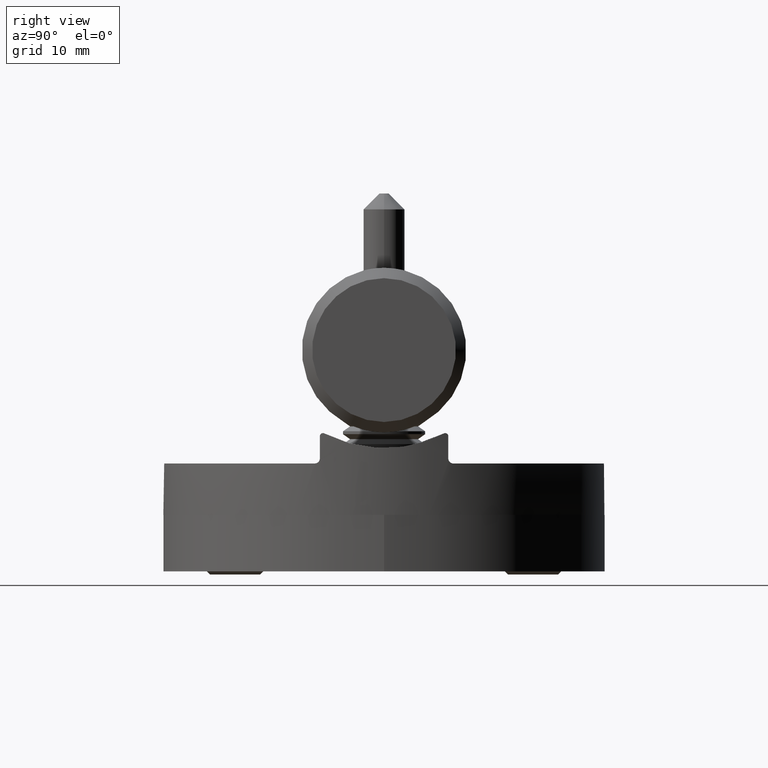
[diagram: clean part render]
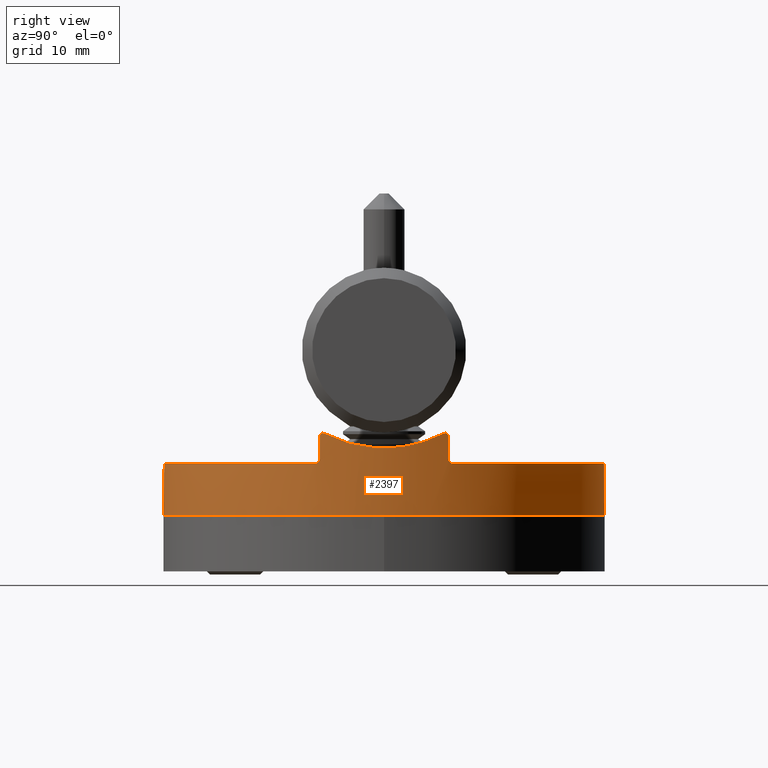
[diagram: same view with one face highlighted and labeled with its STEP entity id]
A machine part, right view. The second image highlights one B-rep face of the part: STEP entity #2397.
In plain terms, the highlighted cylindrical surface (bore or boss wall) has radius 21.5 mm, axis along (-0, -0, -1).
Its self-contained STEP definition (entity closure, byte-faithful):
#193 = DIRECTION ( 'NONE',  ( 0.000000000000000000, 0.000000000000000000, 1.000000000000000000 ) ) ;
#254 = CARTESIAN_POINT ( 'NONE',  ( -21.14691385272726976, 4.005726293120474679, 7.115869858192865216 ) ) ;
#334 = CARTESIAN_POINT ( 'NONE',  ( -21.49577461599383810, -0.4967685220217707420, 6.507262798137473325 ) ) ;
#398 = DIRECTION ( 'NONE',  ( 1.000000000000000000, 0.000000000000000000, 0.000000000000000000 ) ) ;
#401 = CARTESIAN_POINT ( 'NONE',  ( -20.45537897838723040, 6.621612830037686415, 5.000000000000000000 ) ) ;
#411 = CARTESIAN_POINT ( 'NONE',  ( -21.50012919026475444, -0.2424505981596691562, 6.499777792684921174 ) ) ;
#503 = B_SPLINE_CURVE_WITH_KNOTS ( 'NONE', 3,
 ( #5653, #21836, #19868, #9223, #21669, #5726, #14761, #9301, #12820, #11009, #7520, #2157, #14626, #7380, #9452, #11167, #519, #16393, #597, #21750 ),
 .UNSPECIFIED., .F., .F.,
 ( 4, 2, 2, 2, 2, 2, 2, 2, 2, 4 ),
 ( 0.0005128972247787906384, 0.003554065777519497486, 0.004314357915704673981, 0.005074650053889850909, 0.006595234330260204766, 0.007355526468445380828, 0.008115818606630556889, 0.009636402883000910746, 0.01115698715937126113, 0.01267757143574161326 ),
 .UNSPECIFIED. ) ;
#519 = CARTESIAN_POINT ( 'NONE',  ( 21.13508447921551792, 3.973493441872443910, 7.137712790741050917 ) ) ;
#573 = DIRECTION ( 'NONE',  ( -1.000000000000000000, 0.000000000000000000, 0.000000000000000000 ) ) ;
#597 = CARTESIAN_POINT ( 'NONE',  ( 20.82356144371399509, 5.370150797943423093, 7.701376671730360890 ) ) ;
#729 = CARTESIAN_POINT ( 'NONE',  ( 20.57152157717070651, 6.249999999999997335, 5.500000000000000000 ) ) ;
#989 = CARTESIAN_POINT ( 'NONE',  ( 20.57152157717070651, 6.249999999999996447, 7.773284809162592346 ) ) ;
#1386 = CARTESIAN_POINT ( 'NONE',  ( -20.57152157717070651, -6.249999999999999112, 8.174682452694518986 ) ) ;
#1582 = CARTESIAN_POINT ( 'NONE',  ( 20.57152157717070651, -6.249999999999999112, 7.666973043356861695 ) ) ;
#1612 = VECTOR ( 'NONE', #18955, 1000.000000000000000 ) ;
#1725 = ORIENTED_EDGE ( 'NONE', *, *, #6144, .F. ) ;
#1794 = ORIENTED_EDGE ( 'NONE', *, *, #15998, .F. ) ;
#1893 = CARTESIAN_POINT ( 'NONE',  ( -21.35754311692065244, -2.519511209843279698, 6.746244936448041685 ) ) ;
#2041 = CARTESIAN_POINT ( 'NONE',  ( -20.57152157717071006, 6.250000000000000888, 5.364602659282593500 ) ) ;
#2100 = DIRECTION ( 'NONE',  ( 1.000000000000000000, 0.000000000000000000, 0.000000000000000000 ) ) ;
#2153 = EDGE_CURVE ( 'NONE', #20287, #4998, #18182, .T. ) ;
#2157 = CARTESIAN_POINT ( 'NONE',  ( 21.47793092614874766, 1.006771293621065100, 6.537990799168366784 ) ) ;
#2177 = VECTOR ( 'NONE', #21291, 1000.000000000000000 ) ;
#2397 = ADVANCED_FACE ( 'NONE', ( #22474, #10188 ), #10753, .T. ) ;
#2507 = ORIENTED_EDGE ( 'NONE', *, *, #15409, .F. ) ;
#2512 = CARTESIAN_POINT ( 'NONE',  ( 0.000000000000000000, 0.000000000000000000, 5.000000000000000000 ) ) ;
#2674 = DIRECTION ( 'NONE',  ( -0.000000000000000000, -0.000000000000000000, -1.000000000000000000 ) ) ;
#2752 = EDGE_CURVE ( 'NONE', #11403, #19175, #15505, .T. ) ;
#2928 = CARTESIAN_POINT ( 'NONE',  ( -20.64198874175370335, -6.013877691625887145, 7.977351747848785202 ) ) ;
#2999 = EDGE_CURVE ( 'NONE', #18522, #4312, #503, .T. ) ;
#3276 = CARTESIAN_POINT ( 'NONE',  ( -20.45540981752867538, -6.621519568248658061, 4.999999999999999112 ) ) ;
#3328 = CARTESIAN_POINT ( 'NONE',  ( 20.69994070072247894, 5.810546875000042633, 7.932590862653195352 ) ) ;
#3438 = CARTESIAN_POINT ( 'NONE',  ( -20.41292482717750900, -6.750000000000000888, 5.000000000000000000 ) ) ;
#3680 = VERTEX_POINT ( 'NONE', #22428 ) ;
#3705 = CARTESIAN_POINT ( 'NONE',  ( -21.46436013474301774, -1.263196889410821200, 6.561374957017187981 ) ) ;
#4007 = CARTESIAN_POINT ( 'NONE',  ( -21.35260102301306517, 2.525761082998242202, 6.755205125419251999 ) ) ;
#4031 = B_SPLINE_CURVE_WITH_KNOTS ( 'NONE', 3,
 ( #15972, #19532, #12484, #18159, #7503, #1582 ),
 .UNSPECIFIED., .F., .F.,
 ( 4, 2, 4 ),
 ( 8.673617379884034509E-19, 0.0003142624238118461259, 0.0006285248476236913844 ),
 .UNSPECIFIED. ) ;
#4039 = CARTESIAN_POINT ( 'NONE',  ( -20.57152157717070651, -6.249999999999999112, 7.666973043356861695 ) ) ;
#4044 = CARTESIAN_POINT ( 'NONE',  ( 20.41292482717750900, -6.750000000000000888, 5.000000000000000000 ) ) ;
#4062 = CARTESIAN_POINT ( 'NONE',  ( -20.41292482717750900, 6.749999999999999112, 5.000000000000000000 ) ) ;
#4312 = VERTEX_POINT ( 'NONE', #3328 ) ;
#4645 = CARTESIAN_POINT ( 'NONE',  ( -20.57152157717070651, -6.249999999999999112, 7.773284809162592346 ) ) ;
#4722 = CARTESIAN_POINT ( 'NONE',  ( 20.41292482717750900, 6.749999999999999112, 5.000000000000000000 ) ) ;
#4889 = VERTEX_POINT ( 'NONE', #13125 ) ;
#4969 = CARTESIAN_POINT ( 'NONE',  ( -20.64209100525787477, 6.013532082292809555, 7.977551734518658400 ) ) ;
#4998 = VERTEX_POINT ( 'NONE', #19060 ) ;
#5206 = CARTESIAN_POINT ( 'NONE',  ( -20.49577072966207680, -6.494846351891045977, 5.050518188725672708 ) ) ;
#5463 = CARTESIAN_POINT ( 'NONE',  ( -21.32152023424313114, 2.775700441355255066, 6.809439652643705543 ) ) ;
#5476 = CARTESIAN_POINT ( 'NONE',  ( -20.41292482717750900, 6.749999999999999112, 5.000000000000000000 ) ) ;
#5541 = CARTESIAN_POINT ( 'NONE',  ( -21.41065580046156924, -2.022747561019770934, 6.654201942776892587 ) ) ;
#5620 = CARTESIAN_POINT ( 'NONE',  ( -21.40576143654040209, 2.026429573976563869, 6.662737185637142012 ) ) ;
#5633 = ORIENTED_EDGE ( 'NONE', *, *, #14697, .F. ) ;
#5653 = CARTESIAN_POINT ( 'NONE',  ( 20.69994070072249315, -5.810546874999998224, 7.932590862653182917 ) ) ;
#5698 = CARTESIAN_POINT ( 'NONE',  ( -21.13508447921551436, -3.973493441872444798, 7.137712790741048252 ) ) ;
#5726 = CARTESIAN_POINT ( 'NONE',  ( 21.40576143654039853, -2.026429573976567422, 6.662737185637141124 ) ) ;
#5840 = CARTESIAN_POINT ( 'NONE',  ( 0.000000000000000000, 0.000000000000000000, 0.000000000000000000 ) ) ;
#5903 = CARTESIAN_POINT ( 'NONE',  ( 20.57152157717071006, -6.250000000000000888, 5.364602659282593500 ) ) ;
#5949 = CARTESIAN_POINT ( 'NONE',  ( 20.57152157717070651, 6.249999999999997335, 7.666973043356861695 ) ) ;
#6144 = EDGE_CURVE ( 'NONE', #20680, #17122, #14890, .T. ) ;
#6462 = ORIENTED_EDGE ( 'NONE', *, *, #10438, .T. ) ;
#6733 = ORIENTED_EDGE ( 'NONE', *, *, #2752, .F. ) ;
#7160 = CARTESIAN_POINT ( 'NONE',  ( -20.57152157717070651, -6.249999999999999112, 5.500000000000000000 ) ) ;
#7176 = LINE ( 'NONE', #12379, #2177 ) ;
#7350 = CARTESIAN_POINT ( 'NONE',  ( -21.42799087804765179, 1.776097691022753500, 6.624240369548680896 ) ) ;
#7380 = CARTESIAN_POINT ( 'NONE',  ( 21.41065580046156214, 2.022747561019767826, 6.654201942776893475 ) ) ;
#7503 = CARTESIAN_POINT ( 'NONE',  ( 20.57152157717071006, -6.250000000000000000, 7.773364970434486487 ) ) ;
#7520 = CARTESIAN_POINT ( 'NONE',  ( 21.49577461599383099, 0.4967685220217664122, 6.507262798137470661 ) ) ;
#7714 = ORIENTED_EDGE ( 'NONE', *, *, #21051, .F. ) ;
#7760 = CARTESIAN_POINT ( 'NONE',  ( 20.55419081824600980, -6.307518533169028885, 5.233165460514746847 ) ) ;
#7772 = EDGE_CURVE ( 'NONE', #11403, #18995, #11340, .T. ) ;
#7819 = CARTESIAN_POINT ( 'NONE',  ( 20.45540981752867538, 6.621519568248657173, 4.999999999999999112 ) ) ;
#7915 = CARTESIAN_POINT ( 'NONE',  ( 20.57152157717070651, 6.249999999999997335, 7.666973043356861695 ) ) ;
#8215 = CARTESIAN_POINT ( 'NONE',  ( -20.57152157717070651, -6.249999999999999112, 7.666973043356861695 ) ) ;
#8231 = EDGE_CURVE ( 'NONE', #11190, #11190, #21502, .T. ) ;
#8281 = CIRCLE ( 'NONE', #22923, 21.50000000000000000 ) ;
#8665 = CARTESIAN_POINT ( 'NONE',  ( -20.94617066093754687, 4.933358258361772997, 7.472054389126312479 ) ) ;
#8677 = CARTESIAN_POINT ( 'NONE',  ( 20.57152157717070651, 6.249999999999997335, 5.500000000000000000 ) ) ;
#8793 = DIRECTION ( 'NONE',  ( 1.000000000000000000, 0.000000000000000000, 0.000000000000000000 ) ) ;
#8950 = EDGE_CURVE ( 'NONE', #19517, #4312, #12964, .T. ) ;
#9043 = CARTESIAN_POINT ( 'NONE',  ( -21.21976337635325294, -3.494885832073438170, 6.987996715167630768 ) ) ;
#9223 = CARTESIAN_POINT ( 'NONE',  ( 21.32152023424313114, -2.775700441355258175, 6.809439652643708207 ) ) ;
#9269 = CARTESIAN_POINT ( 'NONE',  ( -20.69994070072247894, -5.810546875000045297, 7.932590862653193575 ) ) ;
#9301 = CARTESIAN_POINT ( 'NONE',  ( 21.48153840947312787, -1.023118699531197384, 6.531679107364556813 ) ) ;
#9452 = CARTESIAN_POINT ( 'NONE',  ( 21.35754311692064533, 2.519511209843276145, 6.746244936448041685 ) ) ;
#9627 = CARTESIAN_POINT ( 'NONE',  ( 0.000000000000000000, 0.000000000000000000, 5.000000000000000000 ) ) ;
#9763 = CARTESIAN_POINT ( 'NONE',  ( 20.69994070072247894, 5.810546875000042633, 7.932590862653195352 ) ) ;
#9918 = CARTESIAN_POINT ( 'NONE',  ( 20.67432157203074894, 5.901814436579277512, 7.980507627827594597 ) ) ;
#10144 = CARTESIAN_POINT ( 'NONE',  ( 20.57152157717070651, -6.249999999999999112, 8.174682452694518986 ) ) ;
#10188 = FACE_OUTER_BOUND ( 'NONE', #22801, .T. ) ;
#10234 = LINE ( 'NONE', #1386, #1612 ) ;
#10438 = EDGE_CURVE ( 'NONE', #18522, #17122, #4031, .T. ) ;
#10562 = CARTESIAN_POINT ( 'NONE',  ( -20.57152157717092322, -6.249999999999799272, 5.364474950471099568 ) ) ;
#10753 = CYLINDRICAL_SURFACE ( 'NONE', #20028, 21.50000000000000000 ) ;
#10760 = VERTEX_POINT ( 'NONE', #20203 ) ;
#10823 = CARTESIAN_POINT ( 'NONE',  ( -20.82356144371399864, -5.370150797943426646, 7.701376671730358225 ) ) ;
#10955 = DIRECTION ( 'NONE',  ( 0.000000000000000000, 0.000000000000000000, 1.000000000000000000 ) ) ;
#11009 = CARTESIAN_POINT ( 'NONE',  ( 21.50012919026475444, 0.2424505981596654647, 6.499777792684922062 ) ) ;
#11084 = ORIENTED_EDGE ( 'NONE', *, *, #2153, .T. ) ;
#11147 = CARTESIAN_POINT ( 'NONE',  ( 20.41292482717750900, 6.749999999999999112, 5.000000000000000000 ) ) ;
#11167 = CARTESIAN_POINT ( 'NONE',  ( 21.21976337635325294, 3.494885832073434617, 6.987996715167633432 ) ) ;
#11187 = EDGE_LOOP ( 'NONE', ( #1794, #17601, #11349, #6462, #1725, #19078, #5633, #11084, #7714, #11774, #2507, #17885, #15566, #21733, #6733, #14749 ) ) ;
#11190 = VERTEX_POINT ( 'NONE', #11789 ) ;
#11270 = EDGE_CURVE ( 'NONE', #20574, #17966, #21740, .T. ) ;
#11340 = B_SPLINE_CURVE_WITH_KNOTS ( 'NONE', 3,
 ( #11147, #7819, #18305, #16689, #16535, #729 ),
 .UNSPECIFIED., .F., .F.,
 ( 4, 2, 4 ),
 ( 0.000000000000000000, 0.0004003289548585212783, 0.0008006579097170425565 ),
 .UNSPECIFIED. ) ;
#11349 = ORIENTED_EDGE ( 'NONE', *, *, #2999, .F. ) ;
#11403 = VERTEX_POINT ( 'NONE', #4722 ) ;
#11574 = CARTESIAN_POINT ( 'NONE',  ( 20.57152157717070651, -6.249999999999999112, 5.500000000000000000 ) ) ;
#11774 = ORIENTED_EDGE ( 'NONE', *, *, #11270, .T. ) ;
#11789 = CARTESIAN_POINT ( 'NONE',  ( 21.50000000000000000, 0.000000000000000000, 0.000000000000000000 ) ) ;
#12037 = CARTESIAN_POINT ( 'NONE',  ( 20.57152157717070651, -6.249999999999999112, 7.666973043356861695 ) ) ;
#12038 = B_SPLINE_CURVE_WITH_KNOTS ( 'NONE', 3,
 ( #11574, #5903, #7760, #18331, #15003, #12980 ),
 .UNSPECIFIED., .F., .F.,
 ( 4, 2, 4 ),
 ( 0.000000000000000000, 0.0004003249266175890530, 0.0008006498532351781060 ),
 .UNSPECIFIED. ) ;
#12379 = CARTESIAN_POINT ( 'NONE',  ( 20.57152157717070651, 6.249999999999997335, 8.174682452694518986 ) ) ;
#12389 = DIRECTION ( 'NONE',  ( 0.000000000000000000, 0.000000000000000000, 1.000000000000000000 ) ) ;
#12390 = VECTOR ( 'NONE', #16954, 1000.000000000000000 ) ;
#12484 = CARTESIAN_POINT ( 'NONE',  ( 20.64209100525787477, -6.013532082292808667, 7.977551734518658400 ) ) ;
#12500 = B_SPLINE_CURVE_WITH_KNOTS ( 'NONE', 3,
 ( #17351, #17496, #4969, #21043, #17421, #20974 ),
 .UNSPECIFIED., .F., .F.,
 ( 4, 2, 4 ),
 ( 2.602085213965210642E-18, 0.0003142624238118472101, 0.0006285248476236918180 ),
 .UNSPECIFIED. ) ;
#12710 = CARTESIAN_POINT ( 'NONE',  ( -20.57152157717070651, 6.249999999999997335, 5.500000000000000000 ) ) ;
#12820 = CARTESIAN_POINT ( 'NONE',  ( 21.49973287139287237, -0.5184943791786940093, 6.500459461325629462 ) ) ;
#12862 = EDGE_CURVE ( 'NONE', #10760, #19175, #17002, .T. ) ;
#12964 = B_SPLINE_CURVE_WITH_KNOTS ( 'NONE', 3,
 ( #7915, #989, #22078, #20331, #9918, #9763 ),
 .UNSPECIFIED., .F., .F.,
 ( 4, 2, 4 ),
 ( 0.000000000000000000, 0.0003143202728853456535, 0.0006286405457706913070 ),
 .UNSPECIFIED. ) ;
#12980 = CARTESIAN_POINT ( 'NONE',  ( 20.41292482717750900, -6.750000000000000888, 5.000000000000000000 ) ) ;
#13125 = CARTESIAN_POINT ( 'NONE',  ( -20.69994070072249315, 5.810546874999994671, 7.932590862653184693 ) ) ;
#13677 = VECTOR ( 'NONE', #193, 1000.000000000000000 ) ;
#14626 = CARTESIAN_POINT ( 'NONE',  ( 21.46436013474301419, 1.263196889410817647, 6.561374957017189757 ) ) ;
#14697 = EDGE_CURVE ( 'NONE', #20287, #22225, #8281, .T. ) ;
#14749 = ORIENTED_EDGE ( 'NONE', *, *, #7772, .T. ) ;
#14761 = CARTESIAN_POINT ( 'NONE',  ( 21.42799087804764824, -1.776097691022756608, 6.624240369548678231 ) ) ;
#14890 = LINE ( 'NONE', #10144, #12390 ) ;
#15003 = CARTESIAN_POINT ( 'NONE',  ( 20.45537897838722685, -6.621612830037685526, 5.000000000000000000 ) ) ;
#15227 = CARTESIAN_POINT ( 'NONE',  ( -20.67432157203074894, -5.901814436579278400, 7.980507627827594597 ) ) ;
#15409 = EDGE_CURVE ( 'NONE', #4889, #17966, #20393, .T. ) ;
#15505 = CIRCLE ( 'NONE', #17368, 21.50000000000000000 ) ;
#15566 = ORIENTED_EDGE ( 'NONE', *, *, #19249, .F. ) ;
#15698 = CARTESIAN_POINT ( 'NONE',  ( -20.41292482717750900, -6.750000000000000888, 5.000000000000000000 ) ) ;
#15972 = CARTESIAN_POINT ( 'NONE',  ( 20.69994070072249315, -5.810546874999998224, 7.932590862653182917 ) ) ;
#15998 = EDGE_CURVE ( 'NONE', #19517, #18995, #7176, .T. ) ;
#16340 = AXIS2_PLACEMENT_3D ( 'NONE', #5840, #21786, #398 ) ;
#16393 = CARTESIAN_POINT ( 'NONE',  ( 20.93667155128451896, 4.912863770736352720, 7.494945565633425844 ) ) ;
#16509 = EDGE_CURVE ( 'NONE', #4889, #3680, #12500, .T. ) ;
#16512 = CARTESIAN_POINT ( 'NONE',  ( -20.49600277282623395, 6.494106603331873728, 5.051102361898786697 ) ) ;
#16535 = CARTESIAN_POINT ( 'NONE',  ( 20.57152157717092322, 6.249999999999798383, 5.364474950471099568 ) ) ;
#16664 = CARTESIAN_POINT ( 'NONE',  ( 20.57152157717070651, -6.249999999999999112, 5.500000000000000000 ) ) ;
#16689 = CARTESIAN_POINT ( 'NONE',  ( 20.55425507477874802, 6.307316803401986860, 5.233225056912150563 ) ) ;
#16954 = DIRECTION ( 'NONE',  ( 0.000000000000000000, 0.000000000000000000, 1.000000000000000000 ) ) ;
#17002 = B_SPLINE_CURVE_WITH_KNOTS ( 'NONE', 3,
 ( #12710, #2041, #19901, #16512, #401, #4062 ),
 .UNSPECIFIED., .F., .F.,
 ( 4, 2, 4 ),
 ( 0.000000000000000000, 0.0004003249266175893783, 0.0008006498532351787566 ),
 .UNSPECIFIED. ) ;
#17122 = VERTEX_POINT ( 'NONE', #12037 ) ;
#17167 = CARTESIAN_POINT ( 'NONE',  ( -20.69994070072247894, -5.810546875000045297, 7.932590862653193575 ) ) ;
#17351 = CARTESIAN_POINT ( 'NONE',  ( -20.69994070072249315, 5.810546874999994671, 7.932590862653184693 ) ) ;
#17368 = AXIS2_PLACEMENT_3D ( 'NONE', #17678, #12389, #8793 ) ;
#17421 = CARTESIAN_POINT ( 'NONE',  ( -20.57152157717071006, 6.249999999999998224, 7.773364970434485599 ) ) ;
#17453 = CARTESIAN_POINT ( 'NONE',  ( -20.69994070072247894, -5.810546875000045297, 7.932590862653193575 ) ) ;
#17496 = CARTESIAN_POINT ( 'NONE',  ( -20.67430449949218030, 5.901875257108484263, 7.980539559468645017 ) ) ;
#17601 = ORIENTED_EDGE ( 'NONE', *, *, #8950, .T. ) ;
#17678 = CARTESIAN_POINT ( 'NONE',  ( 0.000000000000000000, 0.000000000000000000, 5.000000000000000000 ) ) ;
#17733 = CARTESIAN_POINT ( 'NONE',  ( 20.69994070072249315, -5.810546874999998224, 7.932590862653182917 ) ) ;
#17885 = ORIENTED_EDGE ( 'NONE', *, *, #16509, .T. ) ;
#17926 = CARTESIAN_POINT ( 'NONE',  ( -20.93667155128450830, -4.912863770736353608, 7.494945565633424955 ) ) ;
#17966 = VERTEX_POINT ( 'NONE', #17453 ) ;
#18096 = LINE ( 'NONE', #21498, #13677 ) ;
#18159 = CARTESIAN_POINT ( 'NONE',  ( 20.58979266153637866, -6.190228374547688261, 7.873820274294117461 ) ) ;
#18182 = B_SPLINE_CURVE_WITH_KNOTS ( 'NONE', 3,
 ( #3438, #3276, #5206, #21222, #10562, #7160 ),
 .UNSPECIFIED., .F., .F.,
 ( 4, 2, 4 ),
 ( 0.000000000000000000, 0.0004003289548585208988, 0.0008006579097170417976 ),
 .UNSPECIFIED. ) ;
#18305 = CARTESIAN_POINT ( 'NONE',  ( 20.49577072966207680, 6.494846351891044200, 5.050518188725672708 ) ) ;
#18331 = CARTESIAN_POINT ( 'NONE',  ( 20.49600277282623040, -6.494106603331874616, 5.051102361898786697 ) ) ;
#18522 = VERTEX_POINT ( 'NONE', #17733 ) ;
#18767 = ORIENTED_EDGE ( 'NONE', *, *, #8231, .T. ) ;
#18817 = EDGE_CURVE ( 'NONE', #20680, #22225, #12038, .T. ) ;
#18955 = DIRECTION ( 'NONE',  ( -0.000000000000000000, -0.000000000000000000, -1.000000000000000000 ) ) ;
#18995 = VERTEX_POINT ( 'NONE', #8677 ) ;
#19060 = CARTESIAN_POINT ( 'NONE',  ( -20.57152157717070651, -6.249999999999999112, 5.500000000000000000 ) ) ;
#19078 = ORIENTED_EDGE ( 'NONE', *, *, #18817, .T. ) ;
#19175 = VERTEX_POINT ( 'NONE', #5476 ) ;
#19249 = EDGE_CURVE ( 'NONE', #10760, #3680, #18096, .T. ) ;
#19517 = VERTEX_POINT ( 'NONE', #5949 ) ;
#19532 = CARTESIAN_POINT ( 'NONE',  ( 20.67430449949218030, -5.901875257108486927, 7.980539559468645017 ) ) ;
#19600 = CARTESIAN_POINT ( 'NONE',  ( -21.47793092614874766, -1.006771293621069097, 6.537990799168367673 ) ) ;
#19868 = CARTESIAN_POINT ( 'NONE',  ( 21.14691385272726620, -4.005726293120477344, 7.115869858192866104 ) ) ;
#19901 = CARTESIAN_POINT ( 'NONE',  ( -20.55419081824600980, 6.307518533169027108, 5.233165460514746847 ) ) ;
#20028 = AXIS2_PLACEMENT_3D ( 'NONE', #2512, #2674, #573 ) ;
#20203 = CARTESIAN_POINT ( 'NONE',  ( -20.57152157717070651, 6.249999999999997335, 5.500000000000000000 ) ) ;
#20287 = VERTEX_POINT ( 'NONE', #15698 ) ;
#20331 = CARTESIAN_POINT ( 'NONE',  ( 20.64198874175370335, 6.013877691625886257, 7.977351747848785202 ) ) ;
#20393 = B_SPLINE_CURVE_WITH_KNOTS ( 'NONE', 3,
 ( #21014, #8665, #254, #5463, #4007, #5620, #7350, #21483, #21400, #411, #334, #19600, #3705, #5541, #1893, #9043, #5698, #17926, #10823, #9269 ),
 .UNSPECIFIED., .F., .F.,
 ( 4, 2, 2, 2, 2, 2, 2, 2, 2, 4 ),
 ( 0.0005128972247787973605, 0.003554065777519503991, 0.004314357915704679185, 0.005074650053889854379, 0.006595234330260207369, 0.007355526468445383430, 0.008115818606630560358, 0.009636402883000912481, 0.01115698715937126807, 0.01267757143574162020 ),
 .UNSPECIFIED. ) ;
#20574 = VERTEX_POINT ( 'NONE', #4039 ) ;
#20680 = VERTEX_POINT ( 'NONE', #16664 ) ;
#20789 = CARTESIAN_POINT ( 'NONE',  ( -20.58989116295294153, -6.189895475876366682, 7.874012798823267545 ) ) ;
#20974 = CARTESIAN_POINT ( 'NONE',  ( -20.57152157717070651, 6.249999999999997335, 7.666973043356861695 ) ) ;
#21014 = CARTESIAN_POINT ( 'NONE',  ( -20.69994070072249315, 5.810546874999994671, 7.932590862653184693 ) ) ;
#21043 = CARTESIAN_POINT ( 'NONE',  ( -20.58979266153637866, 6.190228374547690038, 7.873820274294113908 ) ) ;
#21051 = EDGE_CURVE ( 'NONE', #20574, #4998, #10234, .T. ) ;
#21222 = CARTESIAN_POINT ( 'NONE',  ( -20.55425507477874802, -6.307316803401988636, 5.233225056912150563 ) ) ;
#21291 = DIRECTION ( 'NONE',  ( -0.000000000000000000, -0.000000000000000000, -1.000000000000000000 ) ) ;
#21400 = CARTESIAN_POINT ( 'NONE',  ( -21.49973287139287947, 0.5184943791786897904, 6.500459461325628574 ) ) ;
#21483 = CARTESIAN_POINT ( 'NONE',  ( -21.48153840947313142, 1.023118699531194276, 6.531679107364558590 ) ) ;
#21498 = CARTESIAN_POINT ( 'NONE',  ( -20.57152157717070651, 6.249999999999997335, 8.174682452694518986 ) ) ;
#21502 = CIRCLE ( 'NONE', #16340, 21.50000000000000000 ) ;
#21669 = CARTESIAN_POINT ( 'NONE',  ( 21.35260102301306873, -2.525761082998244866, 6.755205125419251999 ) ) ;
#21733 = ORIENTED_EDGE ( 'NONE', *, *, #12862, .T. ) ;
#21740 = B_SPLINE_CURVE_WITH_KNOTS ( 'NONE', 3,
 ( #8215, #4645, #20789, #2928, #15227, #17167 ),
 .UNSPECIFIED., .F., .F.,
 ( 4, 2, 4 ),
 ( 0.000000000000000000, 0.0003143202728853457619, 0.0006286405457706915239 ),
 .UNSPECIFIED. ) ;
#21750 = CARTESIAN_POINT ( 'NONE',  ( 20.69994070072247894, 5.810546875000042633, 7.932590862653195352 ) ) ;
#21786 = DIRECTION ( 'NONE',  ( 0.000000000000000000, 0.000000000000000000, 1.000000000000000000 ) ) ;
#21836 = CARTESIAN_POINT ( 'NONE',  ( 20.94617066093754332, -4.933358258361776549, 7.472054389126311591 ) ) ;
#22078 = CARTESIAN_POINT ( 'NONE',  ( 20.58989116295294153, 6.189895475876363129, 7.874012798823267545 ) ) ;
#22225 = VERTEX_POINT ( 'NONE', #4044 ) ;
#22428 = CARTESIAN_POINT ( 'NONE',  ( -20.57152157717070651, 6.249999999999997335, 7.666973043356861695 ) ) ;
#22474 = FACE_OUTER_BOUND ( 'NONE', #11187, .T. ) ;
#22801 = EDGE_LOOP ( 'NONE', ( #18767 ) ) ;
#22923 = AXIS2_PLACEMENT_3D ( 'NONE', #9627, #10955, #2100 ) ;